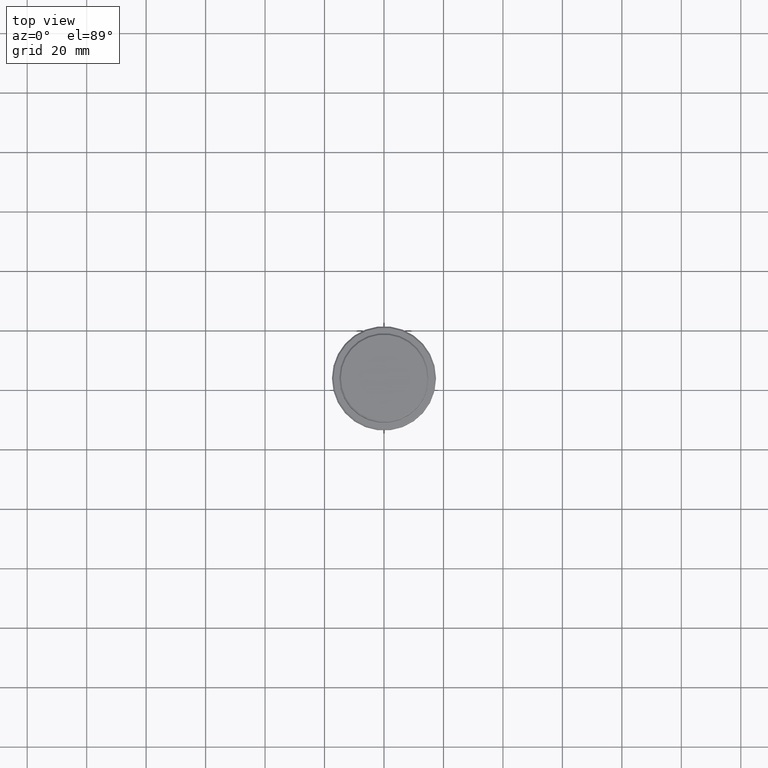
[diagram: clean part render]
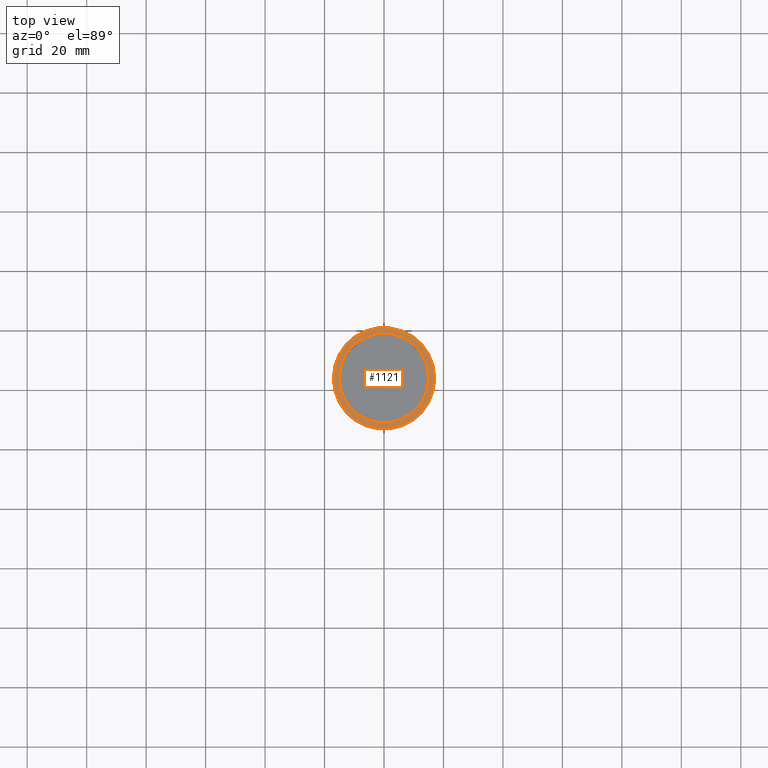
[diagram: same view with one face highlighted and labeled with its STEP entity id]
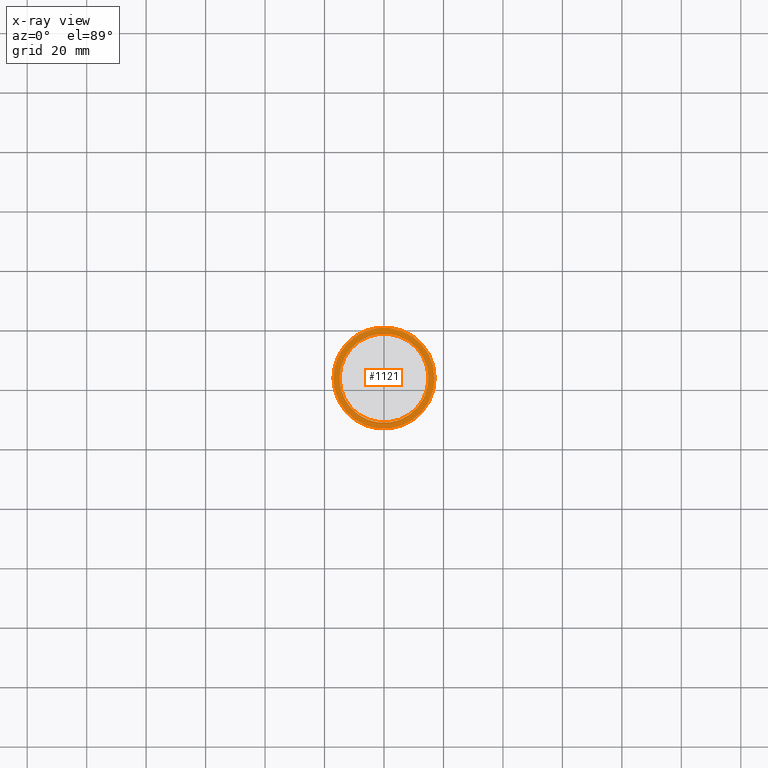
[diagram: x-ray of the same camera — body ghosted, the highlighted face saturated]
A machine part, top view. The second image highlights one B-rep face of the part: STEP entity #1121.
The next image is the same camera in x-ray: the body ghosted, the highlighted face saturated — about 0% of this face is hidden behind the body in this view.
In plain terms, the highlighted planar face has unit normal (0, -0, 1).
Its self-contained STEP definition (entity closure, byte-faithful):
#35 = DIRECTION ( 'NONE',  ( 1.000000000000000000, 0.000000000000000000, 0.000000000000000000 ) ) ;
#36 = CARTESIAN_POINT ( 'NONE',  ( -14.99999999999999289, 1.836970198721028800E-15, -9.000000000000000000 ) ) ;
#45 = EDGE_CURVE ( 'NONE', #747, #70, #1113, .T. ) ;
#53 = EDGE_CURVE ( 'NONE', #1395, #1246, #1198, .T. ) ;
#70 = VERTEX_POINT ( 'NONE', #1114 ) ;
#162 = CARTESIAN_POINT ( 'NONE',  ( 0.000000000000000000, 0.000000000000000000, -9.000000000000000000 ) ) ;
#186 = PLANE ( 'NONE',  #1267 ) ;
#291 = DIRECTION ( 'NONE',  ( 0.000000000000000000, -0.000000000000000000, 1.000000000000000000 ) ) ;
#372 = AXIS2_PLACEMENT_3D ( 'NONE', #386, #799, #900 ) ;
#386 = CARTESIAN_POINT ( 'NONE',  ( 0.000000000000000000, 0.000000000000000000, -9.000000000000000000 ) ) ;
#394 = FACE_OUTER_BOUND ( 'NONE', #921, .T. ) ;
#435 = ORIENTED_EDGE ( 'NONE', *, *, #45, .T. ) ;
#457 = ORIENTED_EDGE ( 'NONE', *, *, #666, .T. ) ;
#512 = CARTESIAN_POINT ( 'NONE',  ( 0.000000000000000000, 0.000000000000000000, -9.000000000000000000 ) ) ;
#519 = EDGE_CURVE ( 'NONE', #70, #747, #953, .T. ) ;
#581 = DIRECTION ( 'NONE',  ( -0.000000000000000000, -0.000000000000000000, 1.000000000000000000 ) ) ;
#595 = ORIENTED_EDGE ( 'NONE', *, *, #53, .T. ) ;
#666 = EDGE_CURVE ( 'NONE', #1246, #1395, #1116, .T. ) ;
#714 = DIRECTION ( 'NONE',  ( 0.000000000000000000, 0.000000000000000000, -1.000000000000000000 ) ) ;
#726 = DIRECTION ( 'NONE',  ( 1.000000000000000000, 0.000000000000000000, 0.000000000000000000 ) ) ;
#727 = DIRECTION ( 'NONE',  ( 1.000000000000000000, 0.000000000000000000, 0.000000000000000000 ) ) ;
#747 = VERTEX_POINT ( 'NONE', #1096 ) ;
#774 = EDGE_LOOP ( 'NONE', ( #457, #595 ) ) ;
#799 = DIRECTION ( 'NONE',  ( 0.000000000000000000, 0.000000000000000000, -1.000000000000000000 ) ) ;
#845 = CARTESIAN_POINT ( 'NONE',  ( 0.000000000000000000, 14.49999999999999467, -9.000000000000000000 ) ) ;
#900 = DIRECTION ( 'NONE',  ( 1.000000000000000000, 0.000000000000000000, 0.000000000000000000 ) ) ;
#912 = AXIS2_PLACEMENT_3D ( 'NONE', #162, #581, #1148 ) ;
#921 = EDGE_LOOP ( 'NONE', ( #1125, #435 ) ) ;
#953 = CIRCLE ( 'NONE', #912, 17.00000000000004263 ) ;
#991 = CARTESIAN_POINT ( 'NONE',  ( 14.99999999999999289, 0.000000000000000000, -9.000000000000000000 ) ) ;
#999 = DIRECTION ( 'NONE',  ( -0.000000000000000000, -0.000000000000000000, 1.000000000000000000 ) ) ;
#1043 = AXIS2_PLACEMENT_3D ( 'NONE', #512, #714, #727 ) ;
#1096 = CARTESIAN_POINT ( 'NONE',  ( 17.00000000000004263, 2.112515728529187222E-15, -9.000000000000000000 ) ) ;
#1113 = CIRCLE ( 'NONE', #1156, 17.00000000000004263 ) ;
#1114 = CARTESIAN_POINT ( 'NONE',  ( -17.00000000000004263, 0.000000000000000000, -9.000000000000000000 ) ) ;
#1116 = CIRCLE ( 'NONE', #1043, 14.99999999999999289 ) ;
#1121 = ADVANCED_FACE ( 'NONE', ( #394, #1270 ), #186, .T. ) ;
#1125 = ORIENTED_EDGE ( 'NONE', *, *, #519, .T. ) ;
#1148 = DIRECTION ( 'NONE',  ( 1.000000000000000000, 0.000000000000000000, 0.000000000000000000 ) ) ;
#1156 = AXIS2_PLACEMENT_3D ( 'NONE', #1237, #999, #35 ) ;
#1198 = CIRCLE ( 'NONE', #372, 14.99999999999999289 ) ;
#1237 = CARTESIAN_POINT ( 'NONE',  ( 0.000000000000000000, 0.000000000000000000, -9.000000000000000000 ) ) ;
#1246 = VERTEX_POINT ( 'NONE', #991 ) ;
#1267 = AXIS2_PLACEMENT_3D ( 'NONE', #845, #291, #726 ) ;
#1270 = FACE_BOUND ( 'NONE', #774, .T. ) ;
#1395 = VERTEX_POINT ( 'NONE', #36 ) ;